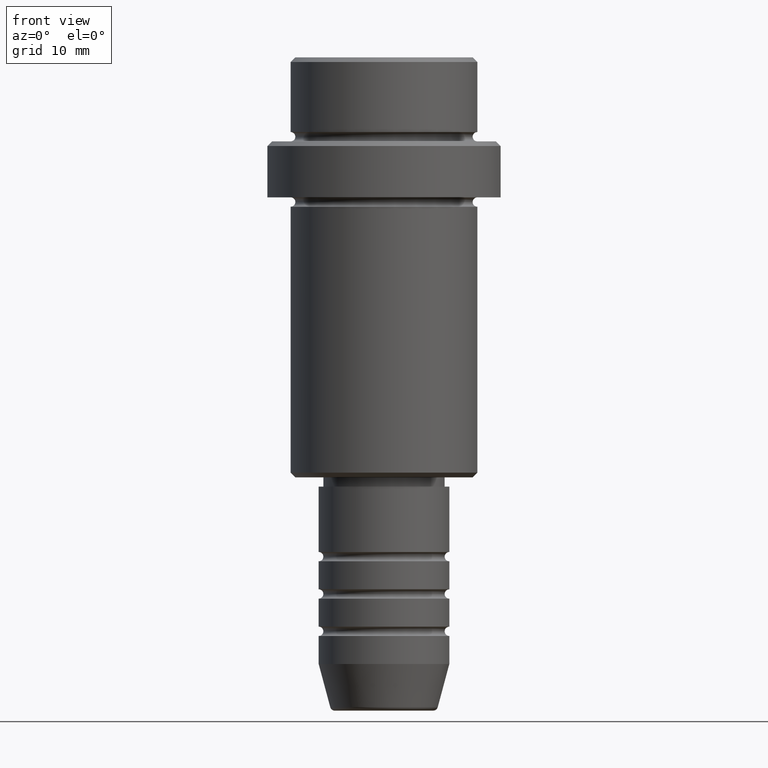
[diagram: clean part render]
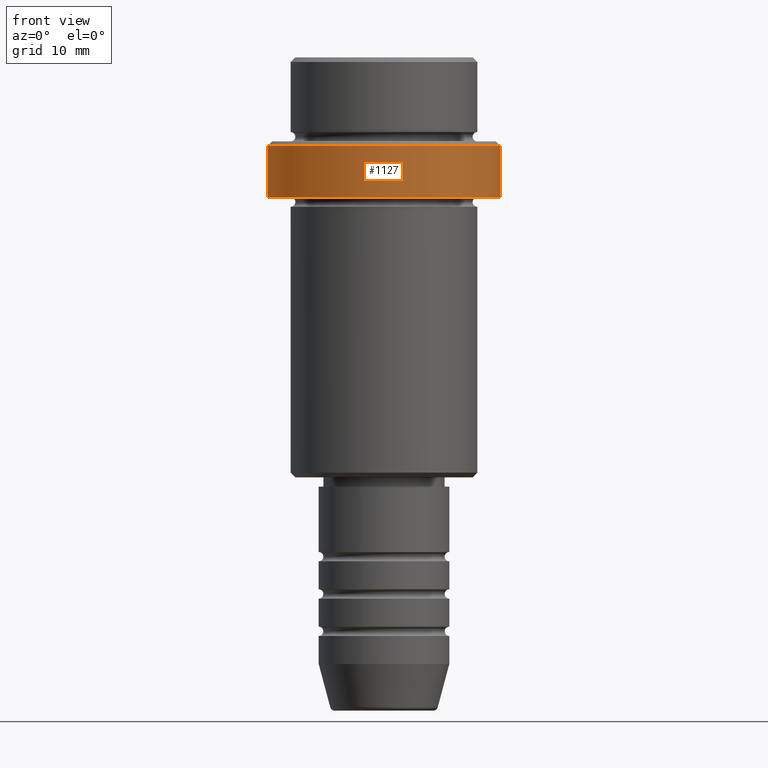
[diagram: same view with one face highlighted and labeled with its STEP entity id]
A machine part, front view. The second image highlights one B-rep face of the part: STEP entity #1127.
In plain terms, the highlighted cylindrical surface (partial cylindrical patch) has radius 12.5 mm, axis along (-0, -0, 1).
Its self-contained STEP definition (entity closure, byte-faithful):
#89 = CARTESIAN_POINT ( 'NONE',  ( 12.50000000000000000, 0.000000000000000000, 0.000000000000000000 ) ) ;
#122 = VERTEX_POINT ( 'NONE', #639 ) ;
#147 = VECTOR ( 'NONE', #285, 1000.000000000000000 ) ;
#159 = CYLINDRICAL_SURFACE ( 'NONE', #1343, 12.50000000000000000 ) ;
#186 = CARTESIAN_POINT ( 'NONE',  ( -12.50000000000000000, 1.530808498934191521E-15, -15.00000000000000178 ) ) ;
#211 = DIRECTION ( 'NONE',  ( -0.000000000000000000, -0.000000000000000000, 1.000000000000000000 ) ) ;
#218 = ORIENTED_EDGE ( 'NONE', *, *, #797, .F. ) ;
#285 = DIRECTION ( 'NONE',  ( -0.000000000000000000, -0.000000000000000000, 1.000000000000000000 ) ) ;
#345 = CARTESIAN_POINT ( 'NONE',  ( 0.000000000000000000, 0.000000000000000000, -15.00000000000000178 ) ) ;
#384 = CARTESIAN_POINT ( 'NONE',  ( -12.50000000000000000, 1.530808498934191521E-15, -9.500000000000014211 ) ) ;
#395 = ORIENTED_EDGE ( 'NONE', *, *, #1404, .T. ) ;
#496 = DIRECTION ( 'NONE',  ( 1.000000000000000000, 0.000000000000000000, 0.000000000000000000 ) ) ;
#518 = CARTESIAN_POINT ( 'NONE',  ( 12.50000000000000000, 0.000000000000000000, -9.500000000000014211 ) ) ;
#579 = CARTESIAN_POINT ( 'NONE',  ( 0.000000000000000000, 0.000000000000000000, 0.000000000000000000 ) ) ;
#612 = DIRECTION ( 'NONE',  ( -0.000000000000000000, -0.000000000000000000, 1.000000000000000000 ) ) ;
#639 = CARTESIAN_POINT ( 'NONE',  ( 12.50000000000000000, 0.000000000000000000, -15.00000000000000178 ) ) ;
#640 = CARTESIAN_POINT ( 'NONE',  ( 0.000000000000000000, 0.000000000000000000, -9.500000000000014211 ) ) ;
#666 = DIRECTION ( 'NONE',  ( 1.000000000000000000, 0.000000000000000000, 0.000000000000000000 ) ) ;
#669 = ORIENTED_EDGE ( 'NONE', *, *, #1415, .T. ) ;
#672 = DIRECTION ( 'NONE',  ( 0.000000000000000000, 0.000000000000000000, -1.000000000000000000 ) ) ;
#677 = CIRCLE ( 'NONE', #826, 12.50000000000000000 ) ;
#797 = EDGE_CURVE ( 'NONE', #818, #999, #1291, .T. ) ;
#818 = VERTEX_POINT ( 'NONE', #186 ) ;
#823 = FACE_OUTER_BOUND ( 'NONE', #979, .T. ) ;
#826 = AXIS2_PLACEMENT_3D ( 'NONE', #640, #672, #666 ) ;
#864 = ORIENTED_EDGE ( 'NONE', *, *, #1210, .T. ) ;
#979 = EDGE_LOOP ( 'NONE', ( #218, #395, #864, #669 ) ) ;
#999 = VERTEX_POINT ( 'NONE', #384 ) ;
#1063 = LINE ( 'NONE', #89, #147 ) ;
#1127 = ADVANCED_FACE ( 'NONE', ( #823 ), #159, .T. ) ;
#1176 = CARTESIAN_POINT ( 'NONE',  ( -12.50000000000000000, 1.530808498934191521E-15, 0.000000000000000000 ) ) ;
#1208 = VECTOR ( 'NONE', #612, 1000.000000000000000 ) ;
#1210 = EDGE_CURVE ( 'NONE', #122, #1225, #1063, .T. ) ;
#1221 = DIRECTION ( 'NONE',  ( 1.000000000000000000, 0.000000000000000000, 0.000000000000000000 ) ) ;
#1225 = VERTEX_POINT ( 'NONE', #518 ) ;
#1282 = CIRCLE ( 'NONE', #1410, 12.50000000000000000 ) ;
#1291 = LINE ( 'NONE', #1176, #1208 ) ;
#1343 = AXIS2_PLACEMENT_3D ( 'NONE', #579, #1370, #496 ) ;
#1370 = DIRECTION ( 'NONE',  ( -0.000000000000000000, -0.000000000000000000, 1.000000000000000000 ) ) ;
#1404 = EDGE_CURVE ( 'NONE', #818, #122, #1282, .T. ) ;
#1410 = AXIS2_PLACEMENT_3D ( 'NONE', #345, #211, #1221 ) ;
#1415 = EDGE_CURVE ( 'NONE', #1225, #999, #677, .T. ) ;